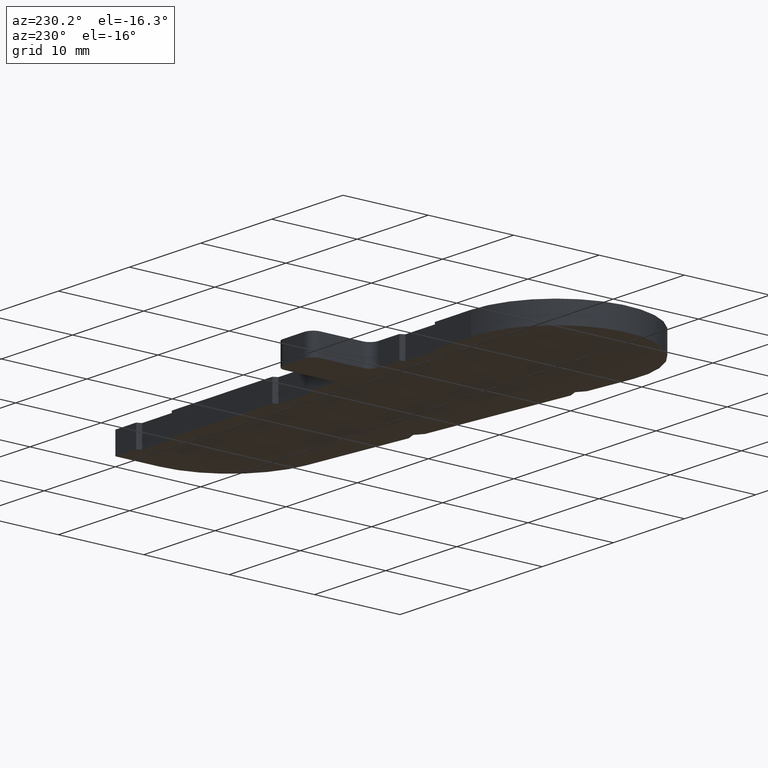
[diagram: clean part render]
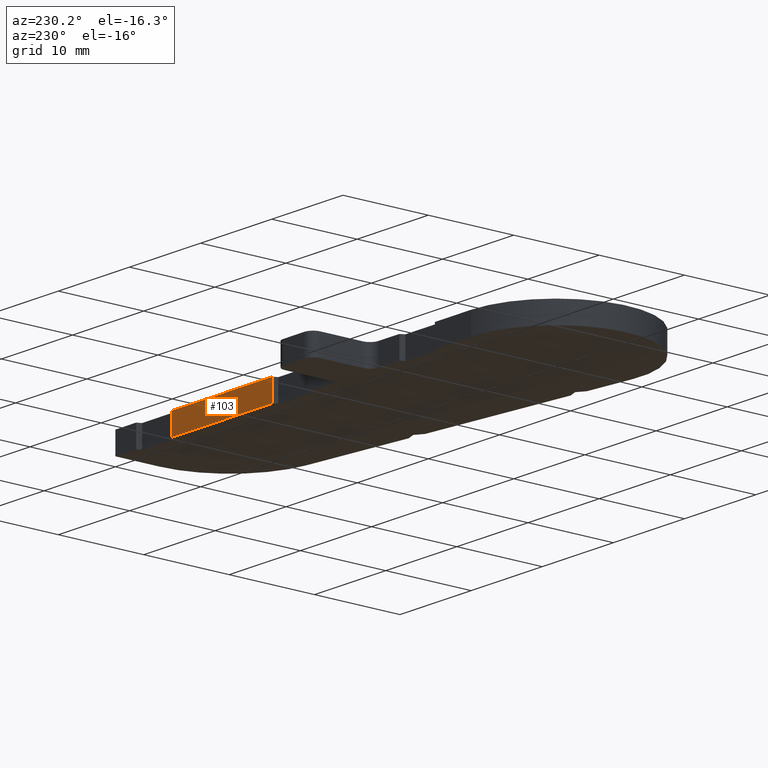
[diagram: same view with one face highlighted and labeled with its STEP entity id]
A machine part, auxiliary view. The second image highlights one B-rep face of the part: STEP entity #103.
In plain terms, the highlighted planar face has unit normal (-0, 1, 0).
Its self-contained STEP definition (entity closure, byte-faithful):
#47=CARTESIAN_POINT('',(42.074999537900112,10.000001968895958,0.0));
#48=VERTEX_POINT('',#47);
#55=CARTESIAN_POINT('',(42.074999537900112,10.000001968895958,2.500000000000000));
#56=VERTEX_POINT('',#55);
#57=CARTESIAN_POINT('',(42.074999537900112,10.000001968895958,0.0));
#58=DIRECTION('',(0.0,0.0,1.0));
#59=VECTOR('',#58,2.500000000000000);
#60=LINE('',#57,#59);
#61=EDGE_CURVE('',#48,#56,#60,.T.);
#73=CARTESIAN_POINT('',(42.074999537900112,10.000001968895958,0.0));
#74=DIRECTION('',(-0.000000046794949,0.999999999999999,0.0));
#75=DIRECTION('',(-0.999999999999999,-0.000000046794949,0.0));
#76=AXIS2_PLACEMENT_3D('',#73,#74,#75);
#77=PLANE('',#76);
#78=CARTESIAN_POINT('',(27.924999526201645,10.000001306747436,0.0));
#79=VERTEX_POINT('',#78);
#80=CARTESIAN_POINT('',(42.074999537900112,10.000001968895930,0.0));
#81=DIRECTION('',(-0.999999999999999,-0.000000046794947,0.0));
#82=VECTOR('',#81,14.150000011698483);
#83=LINE('',#80,#82);
#84=EDGE_CURVE('',#48,#79,#83,.T.);
#85=ORIENTED_EDGE('',*,*,#84,.T.);
#86=CARTESIAN_POINT('',(27.924999526201645,10.000001306747436,2.500000000000000));
#87=VERTEX_POINT('',#86);
#88=CARTESIAN_POINT('',(27.924999526201645,10.000001306747436,0.0));
#89=DIRECTION('',(0.0,0.0,1.0));
#90=VECTOR('',#89,2.500000000000000);
#91=LINE('',#88,#90);
#92=EDGE_CURVE('',#79,#87,#91,.T.);
#93=ORIENTED_EDGE('',*,*,#92,.T.);
#94=CARTESIAN_POINT('',(42.074999537900112,10.000001968895930,2.500000000000000));
#95=DIRECTION('',(-0.999999999999999,-0.000000046794947,0.0));
#96=VECTOR('',#95,14.150000011698483);
#97=LINE('',#94,#96);
#98=EDGE_CURVE('',#56,#87,#97,.T.);
#99=ORIENTED_EDGE('',*,*,#98,.F.);
#100=ORIENTED_EDGE('',*,*,#61,.F.);
#101=EDGE_LOOP('',(#85,#93,#99,#100));
#102=FACE_OUTER_BOUND('',#101,.T.);
#103=ADVANCED_FACE('',(#102),#77,.T.);